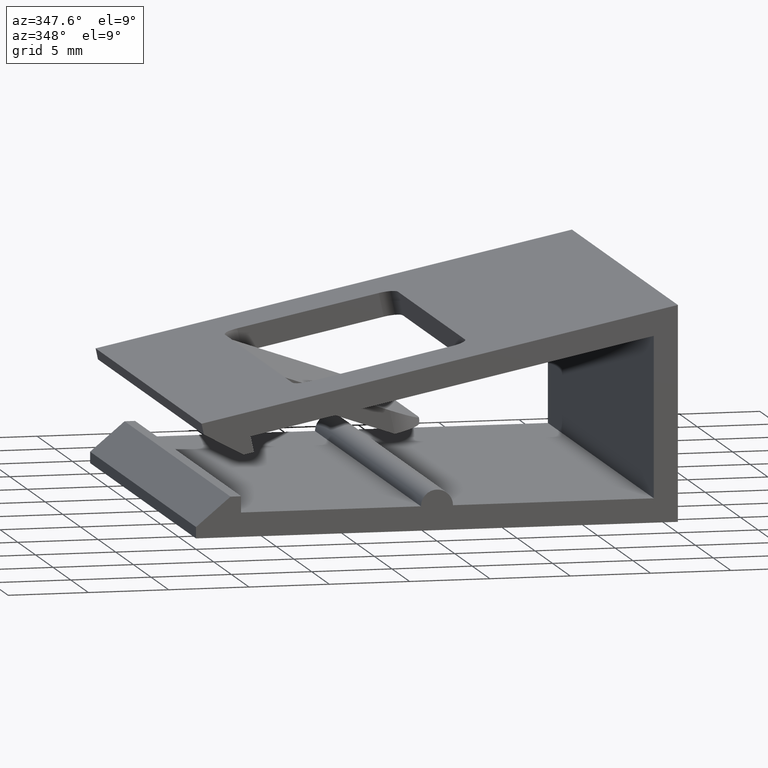
[diagram: clean part render]
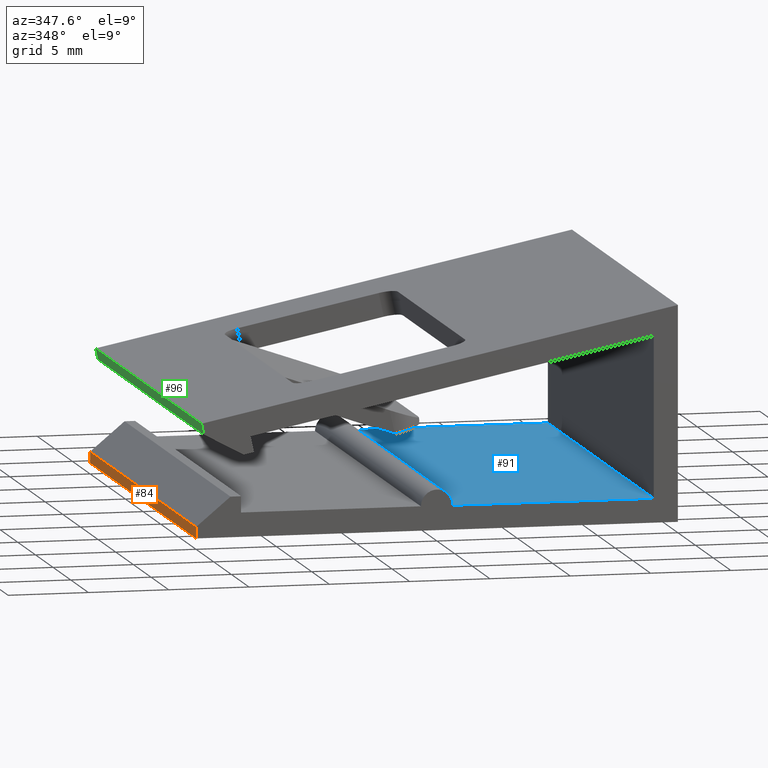
[diagram: same view with three faces highlighted in distinct colors, each labeled with its STEP entity id]
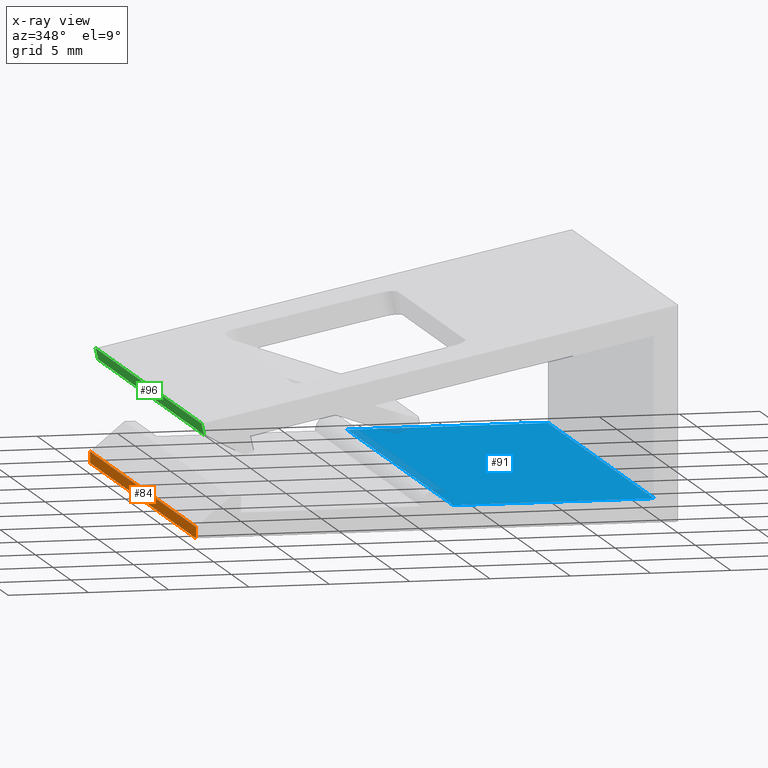
[diagram: x-ray of the same camera — body ghosted, the three highlighted faces saturated]
A machine part, auxiliary view with three faces highlighted in distinct colors.
The next image is the same camera in x-ray (body ghosted, the three faces saturated) — at least one of them is partly hidden behind the body in this view.
Their STEP definitions:

[orange] entity #84 — the highlighted planar face has unit normal (-1, 0, 0).
#84 = ADVANCED_FACE( '', ( #131 ), #132, .T. );
#131 = FACE_OUTER_BOUND( '', #203, .T. );
#132 = PLANE( '', #204 );
#203 = EDGE_LOOP( '', ( #338, #339, #340, #341 ) );
#204 = AXIS2_PLACEMENT_3D( '', #342, #343, #344 );
#338 = ORIENTED_EDGE( '', *, *, #592, .F. );
#339 = ORIENTED_EDGE( '', *, *, #593, .F. );
#340 = ORIENTED_EDGE( '', *, *, #594, .T. );
#341 = ORIENTED_EDGE( '', *, *, #551, .T. );
#342 = CARTESIAN_POINT( '', ( -15.0000000000000, 15.0000000000000, 0.700000000000012 ) );
#343 = DIRECTION( '', ( -1.00000000000000, 6.12303176911189E-017, 0.000000000000000 ) );
#344 = DIRECTION( '', ( -1.12474554136660E-032, -1.83690953073357E-016, 1.00000000000000 ) );
#551 = EDGE_CURVE( '', #650, #647, #651, .T. );
#592 = EDGE_CURVE( '', #723, #647, #724, .T. );
#593 = EDGE_CURVE( '', #725, #723, #726, .T. );
#594 = EDGE_CURVE( '', #725, #650, #727, .T. );
#647 = VERTEX_POINT( '', #804 );
#650 = VERTEX_POINT( '', #808 );
#651 = LINE( '', #809, #810 );
#723 = VERTEX_POINT( '', #910 );
#724 = LINE( '', #911, #912 );
#725 = VERTEX_POINT( '', #913 );
#726 = LINE( '', #914, #915 );
#727 = LINE( '', #916, #917 );
#804 = CARTESIAN_POINT( '', ( -15.0000000000000, -15.0000000000000, 1.84314369322536E-015 ) );
#808 = CARTESIAN_POINT( '', ( -15.0000000000000, 15.0000000000000, 7.35387228542605E-015 ) );
#809 = CARTESIAN_POINT( '', ( -15.0000000000000, 15.0000000000000, 7.35387228542605E-015 ) );
#810 = VECTOR( '', #1027, 1000.00000000000 );
#910 = CARTESIAN_POINT( '', ( -15.0000000000000, -15.0000000000000, 0.700000000000006 ) );
#911 = CARTESIAN_POINT( '', ( -15.0000000000000, -15.0000000000000, 0.700000000000006 ) );
#912 = VECTOR( '', #1092, 1000.00000000000 );
#913 = CARTESIAN_POINT( '', ( -15.0000000000000, 15.0000000000000, 0.700000000000012 ) );
#914 = CARTESIAN_POINT( '', ( -15.0000000000000, 15.0000000000000, 0.700000000000012 ) );
#915 = VECTOR( '', #1093, 1000.00000000000 );
#916 = CARTESIAN_POINT( '', ( -15.0000000000000, 15.0000000000000, 0.700000000000012 ) );
#917 = VECTOR( '', #1094, 1000.00000000000 );
#1027 = DIRECTION( '', ( -6.12303176911189E-017, -1.00000000000000, -1.83690953073357E-016 ) );
#1092 = DIRECTION( '', ( 1.12474554136660E-032, 1.83690953073357E-016, -1.00000000000000 ) );
#1093 = DIRECTION( '', ( -6.12303176911189E-017, -1.00000000000000, -1.83690953073357E-016 ) );
#1094 = DIRECTION( '', ( 1.12474554136660E-032, 1.83690953073357E-016, -1.00000000000000 ) );

[blue] entity #91 — the highlighted planar face has unit normal (0, -0, 1).
#91 = ADVANCED_FACE( '', ( #145 ), #146, .T. );
#145 = FACE_OUTER_BOUND( '', #217, .T. );
#146 = PLANE( '', #218 );
#217 = EDGE_LOOP( '', ( #399, #400, #401, #402 ) );
#218 = AXIS2_PLACEMENT_3D( '', #403, #404, #405 );
#399 = ORIENTED_EDGE( '', *, *, #617, .F. );
#400 = ORIENTED_EDGE( '', *, *, #618, .F. );
#401 = ORIENTED_EDGE( '', *, *, #600, .T. );
#402 = ORIENTED_EDGE( '', *, *, #616, .T. );
#403 = CARTESIAN_POINT( '', ( 13.5000000000000, 15.0000000000000, 1.50000000000001 ) );
#404 = DIRECTION( '', ( 6.37765983815003E-017, -1.83690953073357E-016, 1.00000000000000 ) );
#405 = DIRECTION( '', ( 1.00000000000000, -6.12303176911189E-017, -6.37765983815003E-017 ) );
#600 = EDGE_CURVE( '', #738, #736, #739, .T. );
#616 = EDGE_CURVE( '', #736, #761, #763, .T. );
#617 = EDGE_CURVE( '', #764, #761, #765, .T. );
#618 = EDGE_CURVE( '', #738, #764, #766, .T. );
#736 = VERTEX_POINT( '', #930 );
#738 = VERTEX_POINT( '', #932 );
#739 = LINE( '', #933, #934 );
#761 = VERTEX_POINT( '', #970 );
#763 = LINE( '', #972, #973 );
#764 = VERTEX_POINT( '', #974 );
#765 = LINE( '', #975, #976 );
#766 = LINE( '', #977, #978 );
#930 = CARTESIAN_POINT( '', ( 1.00000000000002, 15.0000000000000, 1.50000000000001 ) );
#932 = CARTESIAN_POINT( '', ( 13.5000000000000, 15.0000000000000, 1.50000000000002 ) );
#933 = CARTESIAN_POINT( '', ( 13.5000000000000, 15.0000000000000, 1.50000000000001 ) );
#934 = VECTOR( '', #1102, 1000.00000000000 );
#970 = CARTESIAN_POINT( '', ( 1.00000000000001, -15.0000000000000, 1.50000000000000 ) );
#972 = CARTESIAN_POINT( '', ( 1.00000000000002, 15.0000000000000, 1.50000000000001 ) );
#973 = VECTOR( '', #1120, 1000.00000000000 );
#974 = CARTESIAN_POINT( '', ( 13.5000000000000, -15.0000000000000, 1.50000000000001 ) );
#975 = CARTESIAN_POINT( '', ( 13.5000000000000, -15.0000000000000, 1.50000000000000 ) );
#976 = VECTOR( '', #1121, 1000.00000000000 );
#977 = CARTESIAN_POINT( '', ( 13.5000000000000, 15.0000000000000, 1.50000000000002 ) );
#978 = VECTOR( '', #1122, 1000.00000000000 );
#1102 = DIRECTION( '', ( -1.00000000000000, 6.12303176911189E-017, 6.37765983815003E-017 ) );
#1120 = DIRECTION( '', ( -6.12303176911189E-017, -1.00000000000000, -1.83690953073357E-016 ) );
#1121 = DIRECTION( '', ( -1.00000000000000, 6.12303176911189E-017, 6.37765983815003E-017 ) );
#1122 = DIRECTION( '', ( -6.12303176911189E-017, -1.00000000000000, -1.83690953073357E-016 ) );

[green] entity #96 — the highlighted planar face has unit normal (-0.9781, 0, -0.2079).
#96 = ADVANCED_FACE( '', ( #155 ), #156, .T. );
#155 = FACE_OUTER_BOUND( '', #227, .T. );
#156 = PLANE( '', #228 );
#227 = EDGE_LOOP( '', ( #434, #435, #436, #437 ) );
#228 = AXIS2_PLACEMENT_3D( '', #438, #439, #440 );
#434 = ORIENTED_EDGE( '', *, *, #626, .F. );
#435 = ORIENTED_EDGE( '', *, *, #583, .F. );
#436 = ORIENTED_EDGE( '', *, *, #605, .T. );
#437 = ORIENTED_EDGE( '', *, *, #625, .T. );
#438 = CARTESIAN_POINT( '', ( -14.6562955582409, 15.0000000000000, 7.04987067656792 ) );
#439 = DIRECTION( '', ( -0.978147600733807, 9.80837849831427E-017, -0.207911690817752 ) );
#440 = DIRECTION( '', ( -0.207911690817752, -1.66946366144741E-016, 0.978147600733807 ) );
#583 = EDGE_CURVE( '', #706, #702, #708, .T. );
#605 = EDGE_CURVE( '', #706, #745, #747, .T. );
#625 = EDGE_CURVE( '', #745, #774, #776, .T. );
#626 = EDGE_CURVE( '', #702, #774, #777, .T. );
#702 = VERTEX_POINT( '', #880 );
#706 = VERTEX_POINT( '', #886 );
#708 = LINE( '', #889, #890 );
#745 = VERTEX_POINT( '', #943 );
#747 = LINE( '', #946, #947 );
#774 = VERTEX_POINT( '', #991 );
#776 = LINE( '', #994, #995 );
#777 = LINE( '', #996, #997 );
#880 = CARTESIAN_POINT( '', ( -14.6562955582409, -15.0000000000000, 7.04987067656792 ) );
#886 = CARTESIAN_POINT( '', ( -14.6562955582409, 15.0000000000000, 7.04987067656792 ) );
#889 = CARTESIAN_POINT( '', ( -14.6562955582409, 15.0000000000000, 7.04987067656792 ) );
#890 = VECTOR( '', #1077, 1000.00000000000 );
#943 = CARTESIAN_POINT( '', ( -14.5107573746685, 15.0000000000000, 6.36516735605427 ) );
#946 = CARTESIAN_POINT( '', ( -14.6562955582409, 15.0000000000000, 7.04987067656792 ) );
#947 = VECTOR( '', #1107, 1000.00000000000 );
#991 = CARTESIAN_POINT( '', ( -14.5107573746685, -15.0000000000000, 6.36516735605427 ) );
#994 = CARTESIAN_POINT( '', ( -14.5107573746685, 15.0000000000000, 6.36516735605427 ) );
#995 = VECTOR( '', #1129, 1000.00000000000 );
#996 = CARTESIAN_POINT( '', ( -14.6562955582409, -15.0000000000000, 7.04987067656792 ) );
#997 = VECTOR( '', #1130, 1000.00000000000 );
#1077 = DIRECTION( '', ( -6.12303176911189E-017, -1.00000000000000, -1.83690953073357E-016 ) );
#1107 = DIRECTION( '', ( 0.207911690817752, 1.66946366144741E-016, -0.978147600733807 ) );
#1129 = DIRECTION( '', ( -6.12303176911189E-017, -1.00000000000000, -1.83690953073357E-016 ) );
#1130 = DIRECTION( '', ( 0.207911690817752, 1.66946366144741E-016, -0.978147600733807 ) );